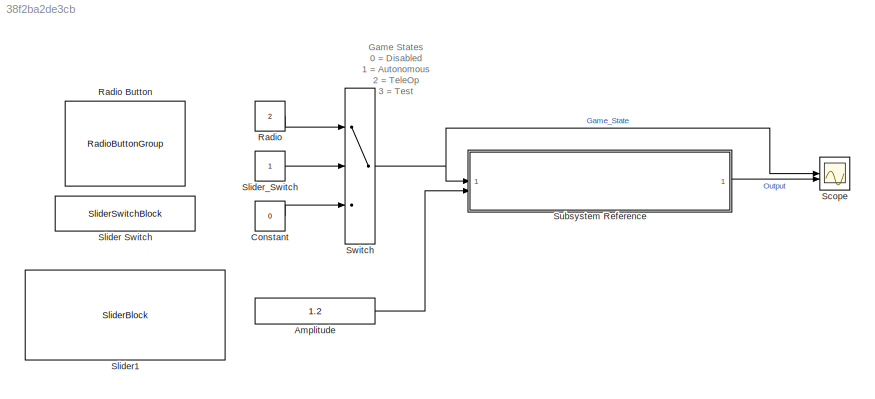
MODEL slx_38f2ba2de3cb
KIND model
CONFIG AbsTol = auto
CONFIG EnableMultiTasking = off
CONFIG FixedStep = t_sample
CONFIG MaxStep = auto
CONFIG MinStep = auto
CONFIG RelTol = 1e-3
CONFIG SampleTimeConstraint = Unconstrained
CONFIG SolverName = FixedStepDiscrete
CONFIG StartTime = 0.0
CONFIG StopTime = inf
BLOCK [Constant] Amplitude
  Value = 1.2
BLOCK [Constant] Constant
  Value = 0
BLOCK [Constant] Radio
  Value = 2
BLOCK [RadioButtonGroup] Radio Button
  ButtonGroupName = Group
  LabelPosition = Hide
  SelectedLabel = TeleOperated
BLOCK [Scope] Scope
  Floating = off
  NumInputPorts = 2
  ScopeSpecificationString = Simulink.scopes.TimeScopeBlockCfg('CurrentConfiguration', extmgr.ConfigurationSet(extmgr.Configuration('Core','General UI',true),extmgr.Configuration('Core','Source UI',true),extmgr.Configuration('Sources','WiredSimulink',true),extmgr.Configuration('Visuals','Time Domain',true,'SerializedDisplays',{struct('MinYLimReal','1.00000','MaxYLimReal','3.00000','YLabelReal','','MinYLimMag','1.00000','MaxYL...<+1936ch>
BLOCK [SliderSwitchBlock] Slider Switch
BLOCK [SliderBlock] Slider1
  ScaleMax = 10
BLOCK [Constant] Slider_Switch
BLOCK [SubSystem] Subsystem Reference
  ReferencedSubsystem = Robot_sub
BLOCK [Switch] Switch
  Criteria = u2 > Threshold
  InputSameDT = off
  SaturateOnIntegerOverflow = off
ANNOTATION (root): Game States 0 = Disabled 1 = Autonomous 2 = TeleOp 3 = Test
LINE Amplitude:1 -> Subsystem Reference:2
LINE Constant:1 -> Switch:3
LINE Radio:1 -> Switch:1
LINE Slider_Switch:1 -> Switch:2
LINE Subsystem Reference:1 -> Scope:2
NET Switch:1 -> Scope:1, Subsystem Reference:1
note: NET lines group one-source signal fan-out (src -> all destinations, sorted); 1:1 wires keep LINE
